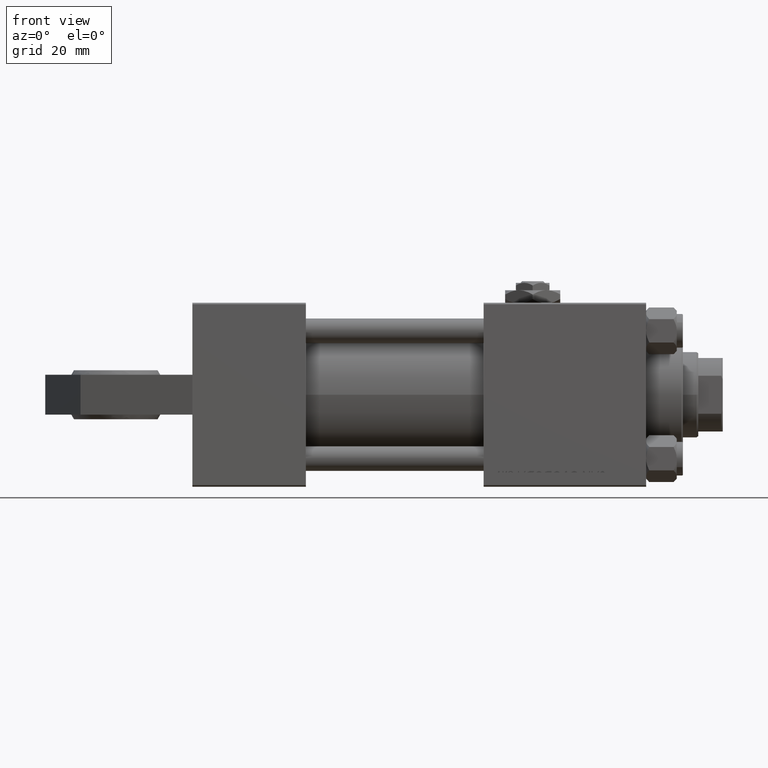
[diagram: clean part render]
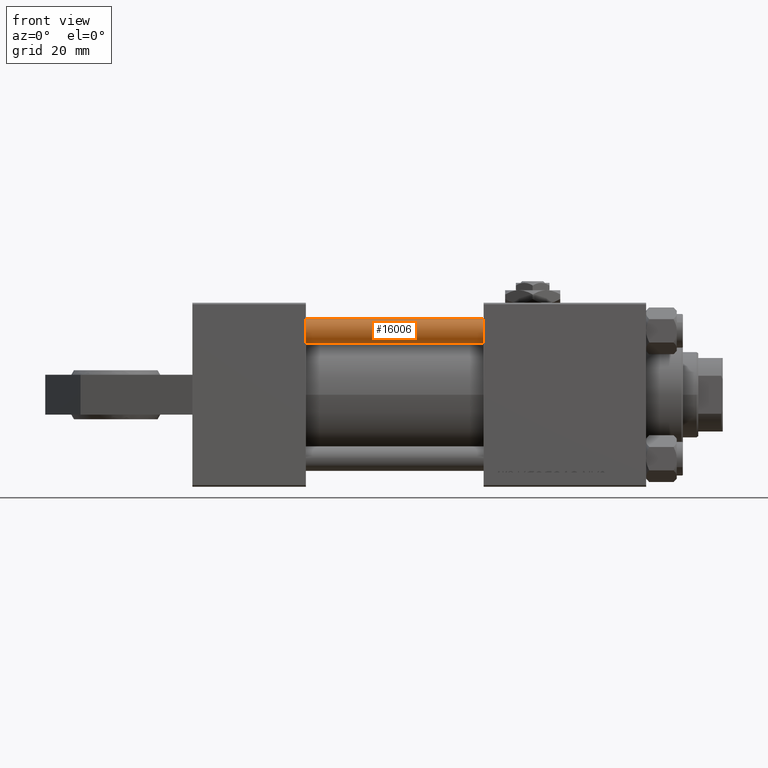
[diagram: same view with one face highlighted and labeled with its STEP entity id]
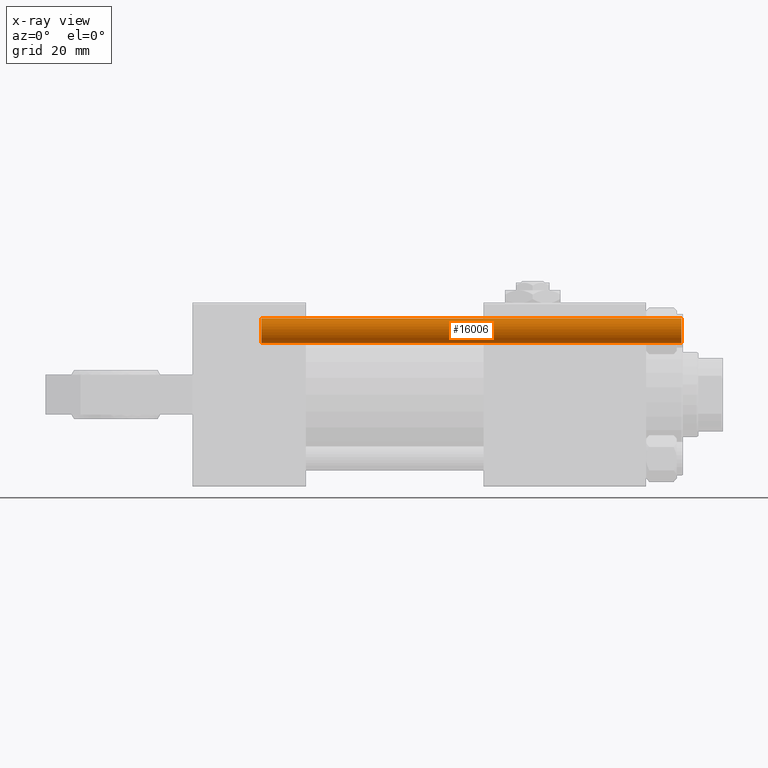
[diagram: x-ray of the same camera — body ghosted, the highlighted face saturated]
A machine part, front view. The second image highlights one B-rep face of the part: STEP entity #16006.
The next image is the same camera in x-ray: the body ghosted, the highlighted face saturated — about 0% of this face is hidden behind the body in this view.
In plain terms, the highlighted cylindrical surface (edge-blend (fillet) strip) has radius 4 mm, axis along (-1, 0, -0).
Its self-contained STEP definition (entity closure, byte-faithful):
#195 = FACE_OUTER_BOUND ( 'NONE', #48398, .T. ) ;
#1329 = VERTEX_POINT ( 'NONE', #39492 ) ;
#2362 = EDGE_CURVE ( 'NONE', #13582, #7479, #30857, .T. ) ;
#4715 = CARTESIAN_POINT ( 'NONE',  ( 4.000000000000000000, 4.898587196589412829E-16, 137.5000000000000284 ) ) ;
#4801 = AXIS2_PLACEMENT_3D ( 'NONE', #48160, #12124, #8428 ) ;
#5060 = CARTESIAN_POINT ( 'NONE',  ( 4.000000000000000000, 4.898587196589412829E-16, 0.5000000000000281997 ) ) ;
#7479 = VERTEX_POINT ( 'NONE', #5060 ) ;
#7981 = AXIS2_PLACEMENT_3D ( 'NONE', #48849, #12813, #28864 ) ;
#8387 = DIRECTION ( 'NONE',  ( -1.000000000000000000, 0.000000000000000000, 0.000000000000000000 ) ) ;
#8428 = DIRECTION ( 'NONE',  ( 1.000000000000000000, 0.000000000000000000, 0.000000000000000000 ) ) ;
#9004 = DIRECTION ( 'NONE',  ( -0.000000000000000000, -0.000000000000000000, -1.000000000000000000 ) ) ;
#12124 = DIRECTION ( 'NONE',  ( 0.000000000000000000, 0.000000000000000000, -1.000000000000000000 ) ) ;
#12813 = DIRECTION ( 'NONE',  ( -0.000000000000000000, -0.000000000000000000, 1.000000000000000000 ) ) ;
#13582 = VERTEX_POINT ( 'NONE', #4715 ) ;
#14639 = CARTESIAN_POINT ( 'NONE',  ( -4.000000000000000000, 0.000000000000000000, 0.5000000000000281997 ) ) ;
#16006 = ADVANCED_FACE ( 'NONE', ( #195 ), #43650, .T. ) ;
#16702 = ORIENTED_EDGE ( 'NONE', *, *, #2362, .T. ) ;
#21630 = LINE ( 'NONE', #30285, #50822 ) ;
#22264 = CIRCLE ( 'NONE', #7981, 4.000000000000000000 ) ;
#26571 = ORIENTED_EDGE ( 'NONE', *, *, #37719, .T. ) ;
#27856 = CARTESIAN_POINT ( 'NONE',  ( 0.000000000000000000, 0.000000000000000000, 138.0000000000000000 ) ) ;
#28106 = EDGE_CURVE ( 'NONE', #7479, #37159, #22264, .T. ) ;
#28864 = DIRECTION ( 'NONE',  ( 1.000000000000000000, 0.000000000000000000, 0.000000000000000000 ) ) ;
#29999 = ORIENTED_EDGE ( 'NONE', *, *, #28106, .T. ) ;
#30285 = CARTESIAN_POINT ( 'NONE',  ( -4.000000000000000000, 0.000000000000000000, 138.0000000000000000 ) ) ;
#30857 = LINE ( 'NONE', #33751, #44704 ) ;
#33276 = AXIS2_PLACEMENT_3D ( 'NONE', #27856, #44431, #8387 ) ;
#33751 = CARTESIAN_POINT ( 'NONE',  ( 4.000000000000000000, 4.898587196589412829E-16, 138.0000000000000000 ) ) ;
#37159 = VERTEX_POINT ( 'NONE', #14639 ) ;
#37719 = EDGE_CURVE ( 'NONE', #1329, #13582, #40116, .T. ) ;
#39317 = ORIENTED_EDGE ( 'NONE', *, *, #47650, .F. ) ;
#39492 = CARTESIAN_POINT ( 'NONE',  ( -4.000000000000000000, 0.000000000000000000, 137.5000000000000284 ) ) ;
#40116 = CIRCLE ( 'NONE', #4801, 4.000000000000000000 ) ;
#42679 = DIRECTION ( 'NONE',  ( -0.000000000000000000, -0.000000000000000000, -1.000000000000000000 ) ) ;
#43650 = CYLINDRICAL_SURFACE ( 'NONE', #33276, 4.000000000000000000 ) ;
#44431 = DIRECTION ( 'NONE',  ( -0.000000000000000000, -0.000000000000000000, -1.000000000000000000 ) ) ;
#44704 = VECTOR ( 'NONE', #42679, 1000.000000000000000 ) ;
#47650 = EDGE_CURVE ( 'NONE', #1329, #37159, #21630, .T. ) ;
#48160 = CARTESIAN_POINT ( 'NONE',  ( 0.000000000000000000, 0.000000000000000000, 137.5000000000000284 ) ) ;
#48398 = EDGE_LOOP ( 'NONE', ( #26571, #16702, #29999, #39317 ) ) ;
#48849 = CARTESIAN_POINT ( 'NONE',  ( 0.000000000000000000, 0.000000000000000000, 0.5000000000000281997 ) ) ;
#50822 = VECTOR ( 'NONE', #9004, 1000.000000000000000 ) ;